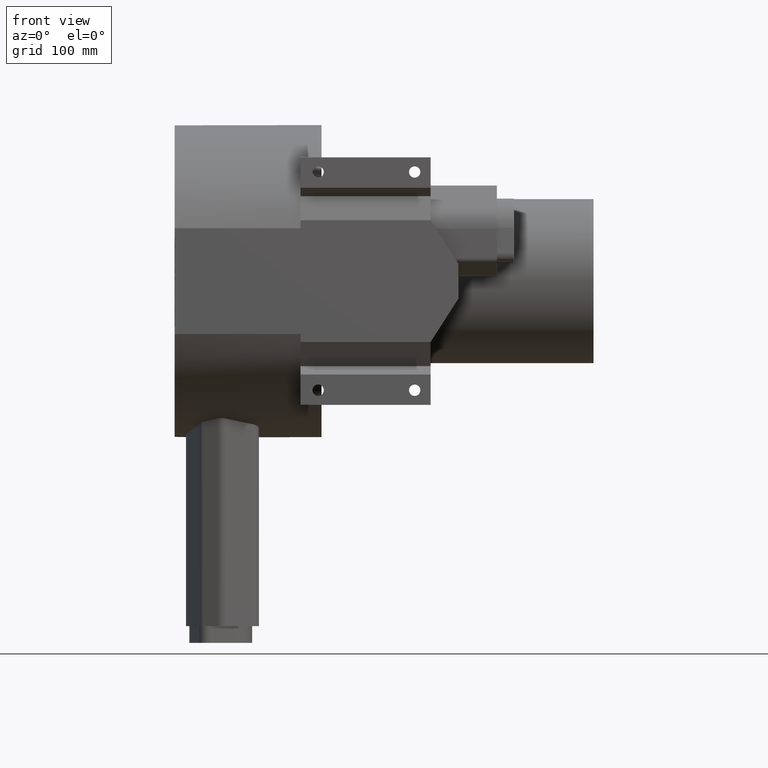
[diagram: clean part render]
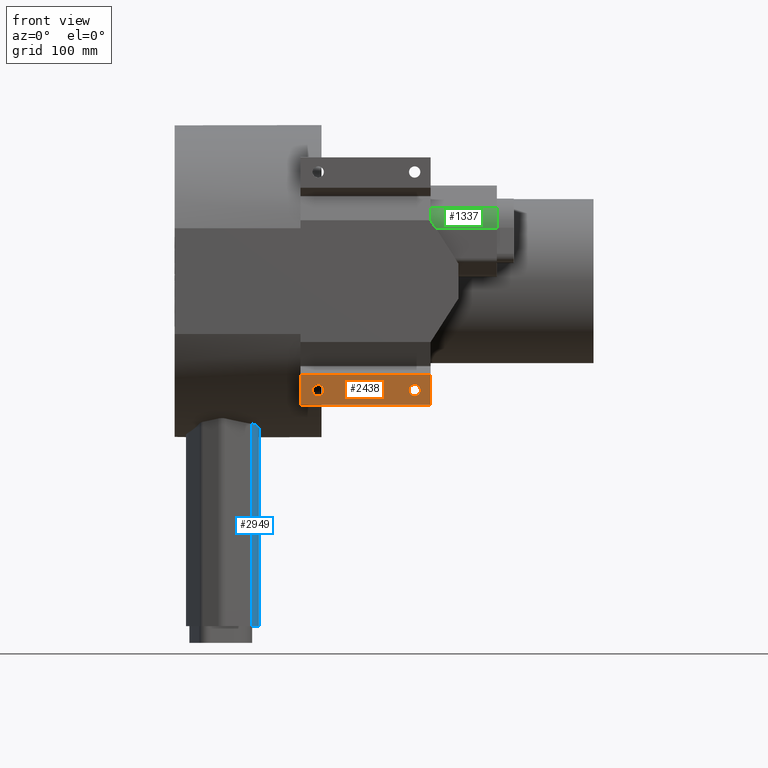
[diagram: same view with three faces highlighted in distinct colors, each labeled with its STEP entity id]
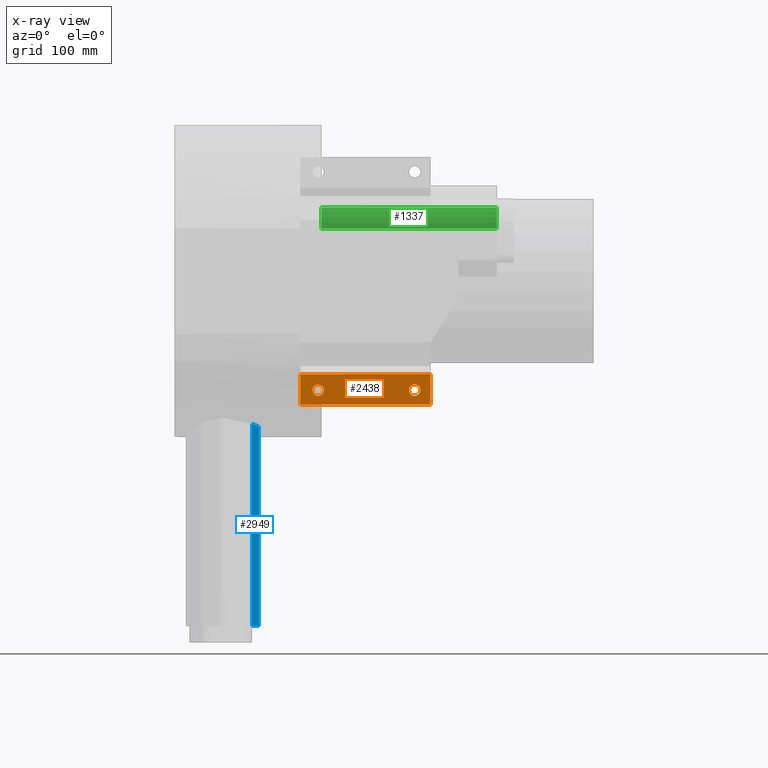
[diagram: x-ray of the same camera — body ghosted, the three highlighted faces saturated]
A machine part, front view with three faces highlighted in distinct colors.
The next image is the same camera in x-ray (body ghosted, the three faces saturated) — at least one of them is partly hidden behind the body in this view.
Their STEP definitions:

[orange] entity #2438 — the highlighted planar face has unit normal (0, 1, 0).
#1749=CARTESIAN_POINT('',(305.0,-175.0,-111.19059892324151));
#1750=VERTEX_POINT('',#1749);
#1757=CARTESIAN_POINT('',(305.0,-175.0,-147.5));
#1758=VERTEX_POINT('',#1757);
#1759=CARTESIAN_POINT('',(305.0,-175.0,-111.19059892324151));
#1760=DIRECTION('',(0.0,0.0,-1.0));
#1761=VECTOR('',#1760,36.30940107675849);
#1762=LINE('',#1759,#1761);
#1763=EDGE_CURVE('',#1750,#1758,#1762,.T.);
#2375=CARTESIAN_POINT('',(150.00000000000003,-175.0,-147.5));
#2376=VERTEX_POINT('',#2375);
#2377=CARTESIAN_POINT('',(150.00000000000003,-175.0,-147.5));
#2378=DIRECTION('',(1.0,0.0,0.0));
#2379=VECTOR('',#2378,154.99999999999997);
#2380=LINE('',#2377,#2379);
#2381=EDGE_CURVE('',#2376,#1758,#2380,.T.);
#2393=CARTESIAN_POINT('',(175.0,-175.0,-111.19059892324151));
#2394=DIRECTION('',(0.0,1.0,0.0));
#2395=DIRECTION('',(0.0,0.0,1.0));
#2396=AXIS2_PLACEMENT_3D('',#2393,#2394,#2395);
#2397=PLANE('',#2396);
#2398=ORIENTED_EDGE('',*,*,#1763,.F.);
#2399=CARTESIAN_POINT('',(150.00000000000003,-175.0,-111.19059892324151));
#2400=VERTEX_POINT('',#2399);
#2401=CARTESIAN_POINT('',(150.00000000000003,-175.0,-111.19059892324151));
#2402=DIRECTION('',(1.0,0.0,0.0));
#2403=VECTOR('',#2402,154.99999999999997);
#2404=LINE('',#2401,#2403);
#2405=EDGE_CURVE('',#2400,#1750,#2404,.T.);
#2406=ORIENTED_EDGE('',*,*,#2405,.F.);
#2407=CARTESIAN_POINT('',(150.0,-175.0,-147.5));
#2408=DIRECTION('',(0.0,0.0,1.0));
#2409=VECTOR('',#2408,36.30940107675849);
#2410=LINE('',#2407,#2409);
#2411=EDGE_CURVE('',#2376,#2400,#2410,.T.);
#2412=ORIENTED_EDGE('',*,*,#2411,.F.);
#2413=ORIENTED_EDGE('',*,*,#2381,.T.);
#2414=EDGE_LOOP('',(#2398,#2406,#2412,#2413));
#2415=FACE_OUTER_BOUND('',#2414,.T.);
#2416=CARTESIAN_POINT('',(292.75,-175.0,-130.0));
#2417=VERTEX_POINT('',#2416);
#2418=CARTESIAN_POINT('',(286.0,-175.0,-130.0));
#2419=DIRECTION('',(0.0,1.0,0.0));
#2420=DIRECTION('',(-1.0,0.0,0.0));
#2421=AXIS2_PLACEMENT_3D('',#2418,#2419,#2420);
#2422=CIRCLE('',#2421,6.75);
#2423=EDGE_CURVE('',#2417,#2417,#2422,.T.);
#2424=ORIENTED_EDGE('',*,*,#2423,.T.);
#2425=EDGE_LOOP('',(#2424));
#2426=FACE_BOUND('',#2425,.T.);
#2427=CARTESIAN_POINT('',(177.75,-175.0,-130.0));
#2428=VERTEX_POINT('',#2427);
#2429=CARTESIAN_POINT('',(170.99999999999997,-175.0,-130.0));
#2430=DIRECTION('',(0.0,1.0,0.0));
#2431=DIRECTION('',(-1.0,0.0,0.0));
#2432=AXIS2_PLACEMENT_3D('',#2429,#2430,#2431);
#2433=CIRCLE('',#2432,6.75);
#2434=EDGE_CURVE('',#2428,#2428,#2433,.T.);
#2435=ORIENTED_EDGE('',*,*,#2434,.T.);
#2436=EDGE_LOOP('',(#2435));
#2437=FACE_BOUND('',#2436,.T.);
#2438=ADVANCED_FACE('',(#2415,#2426,#2437),#2397,.F.);

[blue] entity #2949 — the highlighted cylindrical surface (edge-blend (fillet) strip) has radius 14 mm, axis along (0, 0, -1).
#1653=CARTESIAN_POINT('',(91.868629886375118,-75.174333981934765,-170.13177101991425));
#1654=VERTEX_POINT('',#1653);
#1662=CARTESIAN_POINT('',(99.970335128895087,-58.851801527950364,-176.44394423418092));
#1663=VERTEX_POINT('',#1662);
#1664=CARTESIAN_POINT('',(91.868629886375132,-75.174333981934794,-170.13177101991425));
#1665=CARTESIAN_POINT('',(93.50409748579338,-74.480119173254963,-170.43851640656396));
#1666=CARTESIAN_POINT('',(94.98197399660539,-73.467069193922399,-170.88041007536964));
#1667=CARTESIAN_POINT('',(97.456425326427365,-71.063440501058196,-171.89495539802738));
#1668=CARTESIAN_POINT('',(98.566817578367548,-69.465367519632352,-172.55168553493658));
#1669=CARTESIAN_POINT('',(100.03783710569027,-65.969828719398549,-173.91809326213999));
#1670=CARTESIAN_POINT('',(100.39839408752529,-64.071809357746304,-174.62643007066464));
#1671=CARTESIAN_POINT('',(100.3983940875253,-61.17348919616974,-175.6564869366199));
#1672=CARTESIAN_POINT('',(100.26204987694791,-60.004232401551221,-176.05955794457367));
#1673=CARTESIAN_POINT('',(99.970335128895073,-58.851801527950364,-176.44394423418089));
#1674=B_SPLINE_CURVE_WITH_KNOTS('',3,(#1664,#1665,#1666,#1667,#1668,#1669,#1670,#1671,#1672,#1673),.UNSPECIFIED.,.F.,.U.,(4,2,2,2,4),(4.895256996387648,5.405823228429842,5.973991358484736,6.54215948853963,6.896767020034848),.UNSPECIFIED.);
#1675=EDGE_CURVE('',#1654,#1663,#1674,.T.);
#2906=CARTESIAN_POINT('',(99.970335128895087,-58.851801527950364,-411.0));
#2907=VERTEX_POINT('',#2906);
#2908=CARTESIAN_POINT('',(99.970335128895087,-58.851801527950364,-176.44394423418092));
#2909=DIRECTION('',(0.0,0.0,-1.0));
#2910=VECTOR('',#2909,234.55605576581908);
#2911=LINE('',#2908,#2910);
#2912=EDGE_CURVE('',#1663,#2907,#2911,.T.);
#2925=CARTESIAN_POINT('',(86.39839408752529,-62.287266033600631,0.0));
#2926=DIRECTION('',(0.0,0.0,-1.0));
#2927=DIRECTION('',(0.390731128489274,-0.92050485345244,0.0));
#2928=AXIS2_PLACEMENT_3D('',#2925,#2926,#2927);
#2929=CYLINDRICAL_SURFACE('',#2928,14.000000000000002);
#2930=ORIENTED_EDGE('',*,*,#1675,.F.);
#2931=CARTESIAN_POINT('',(91.868629886375118,-75.174333981934765,-411.0));
#2932=VERTEX_POINT('',#2931);
#2933=CARTESIAN_POINT('',(91.868629886375118,-75.174333981934765,-170.13177101991425));
#2934=DIRECTION('',(0.0,0.0,-1.0));
#2935=VECTOR('',#2934,240.86822898008575);
#2936=LINE('',#2933,#2935);
#2937=EDGE_CURVE('',#1654,#2932,#2936,.T.);
#2938=ORIENTED_EDGE('',*,*,#2937,.T.);
#2939=CARTESIAN_POINT('',(86.39839408752529,-62.287266033600631,-411.0));
#2940=DIRECTION('',(0.0,0.0,1.0));
#2941=DIRECTION('',(0.390731128489274,-0.92050485345244,0.0));
#2942=AXIS2_PLACEMENT_3D('',#2939,#2940,#2941);
#2943=CIRCLE('',#2942,14.0);
#2944=EDGE_CURVE('',#2932,#2907,#2943,.T.);
#2945=ORIENTED_EDGE('',*,*,#2944,.T.);
#2946=ORIENTED_EDGE('',*,*,#2912,.F.);
#2947=EDGE_LOOP('',(#2930,#2938,#2945,#2946));
#2948=FACE_OUTER_BOUND('',#2947,.T.);
#2949=ADVANCED_FACE('',(#2948),#2929,.T.);

[green] entity #1337 — the highlighted cylindrical surface (edge-blend (fillet) strip) has radius 35 mm, axis along (1, 0, 0).
#485=CARTESIAN_POINT('',(175.0,-168.0,62.5));
#486=VERTEX_POINT('',#485);
#493=CARTESIAN_POINT('',(175.0,-157.31304296606493,87.676893011852826));
#494=VERTEX_POINT('',#493);
#495=CARTESIAN_POINT('',(175.0,-133.0,62.5));
#496=DIRECTION('',(-1.0,0.0,0.0));
#497=DIRECTION('',(0.0,-0.694658370458997,0.719339800338651));
#498=AXIS2_PLACEMENT_3D('',#495,#496,#497);
#499=CIRCLE('',#498,34.999999999999986);
#500=EDGE_CURVE('',#486,#494,#499,.T.);
#1294=CARTESIAN_POINT('',(384.00000000000006,-157.31304296606493,87.676893011852826));
#1295=VERTEX_POINT('',#1294);
#1304=CARTESIAN_POINT('',(175.0,-157.31304296606493,87.676893011852826));
#1305=DIRECTION('',(1.0,0.0,0.0));
#1306=VECTOR('',#1305,209.00000000000006);
#1307=LINE('',#1304,#1306);
#1308=EDGE_CURVE('',#494,#1295,#1307,.T.);
#1313=CARTESIAN_POINT('',(175.0,-133.0,62.5));
#1314=DIRECTION('',(1.0,0.0,0.0));
#1315=DIRECTION('',(0.0,-0.694658370458997,0.719339800338651));
#1316=AXIS2_PLACEMENT_3D('',#1313,#1314,#1315);
#1317=CYLINDRICAL_SURFACE('',#1316,34.999999999999986);
#1318=CARTESIAN_POINT('',(384.00000000000006,-168.0,62.5));
#1319=VERTEX_POINT('',#1318);
#1320=CARTESIAN_POINT('',(384.00000000000006,-133.0,62.5));
#1321=DIRECTION('',(-1.0,0.0,0.0));
#1322=DIRECTION('',(0.0,-0.694658370458997,0.719339800338651));
#1323=AXIS2_PLACEMENT_3D('',#1320,#1321,#1322);
#1324=CIRCLE('',#1323,34.999999999999986);
#1325=EDGE_CURVE('',#1319,#1295,#1324,.T.);
#1326=ORIENTED_EDGE('',*,*,#1325,.T.);
#1327=ORIENTED_EDGE('',*,*,#1308,.F.);
#1328=ORIENTED_EDGE('',*,*,#500,.F.);
#1329=CARTESIAN_POINT('',(175.0,-168.0,62.5));
#1330=DIRECTION('',(1.0,0.0,0.0));
#1331=VECTOR('',#1330,209.00000000000006);
#1332=LINE('',#1329,#1331);
#1333=EDGE_CURVE('',#486,#1319,#1332,.T.);
#1334=ORIENTED_EDGE('',*,*,#1333,.T.);
#1335=EDGE_LOOP('',(#1326,#1327,#1328,#1334));
#1336=FACE_OUTER_BOUND('',#1335,.T.);
#1337=ADVANCED_FACE('',(#1336),#1317,.T.);